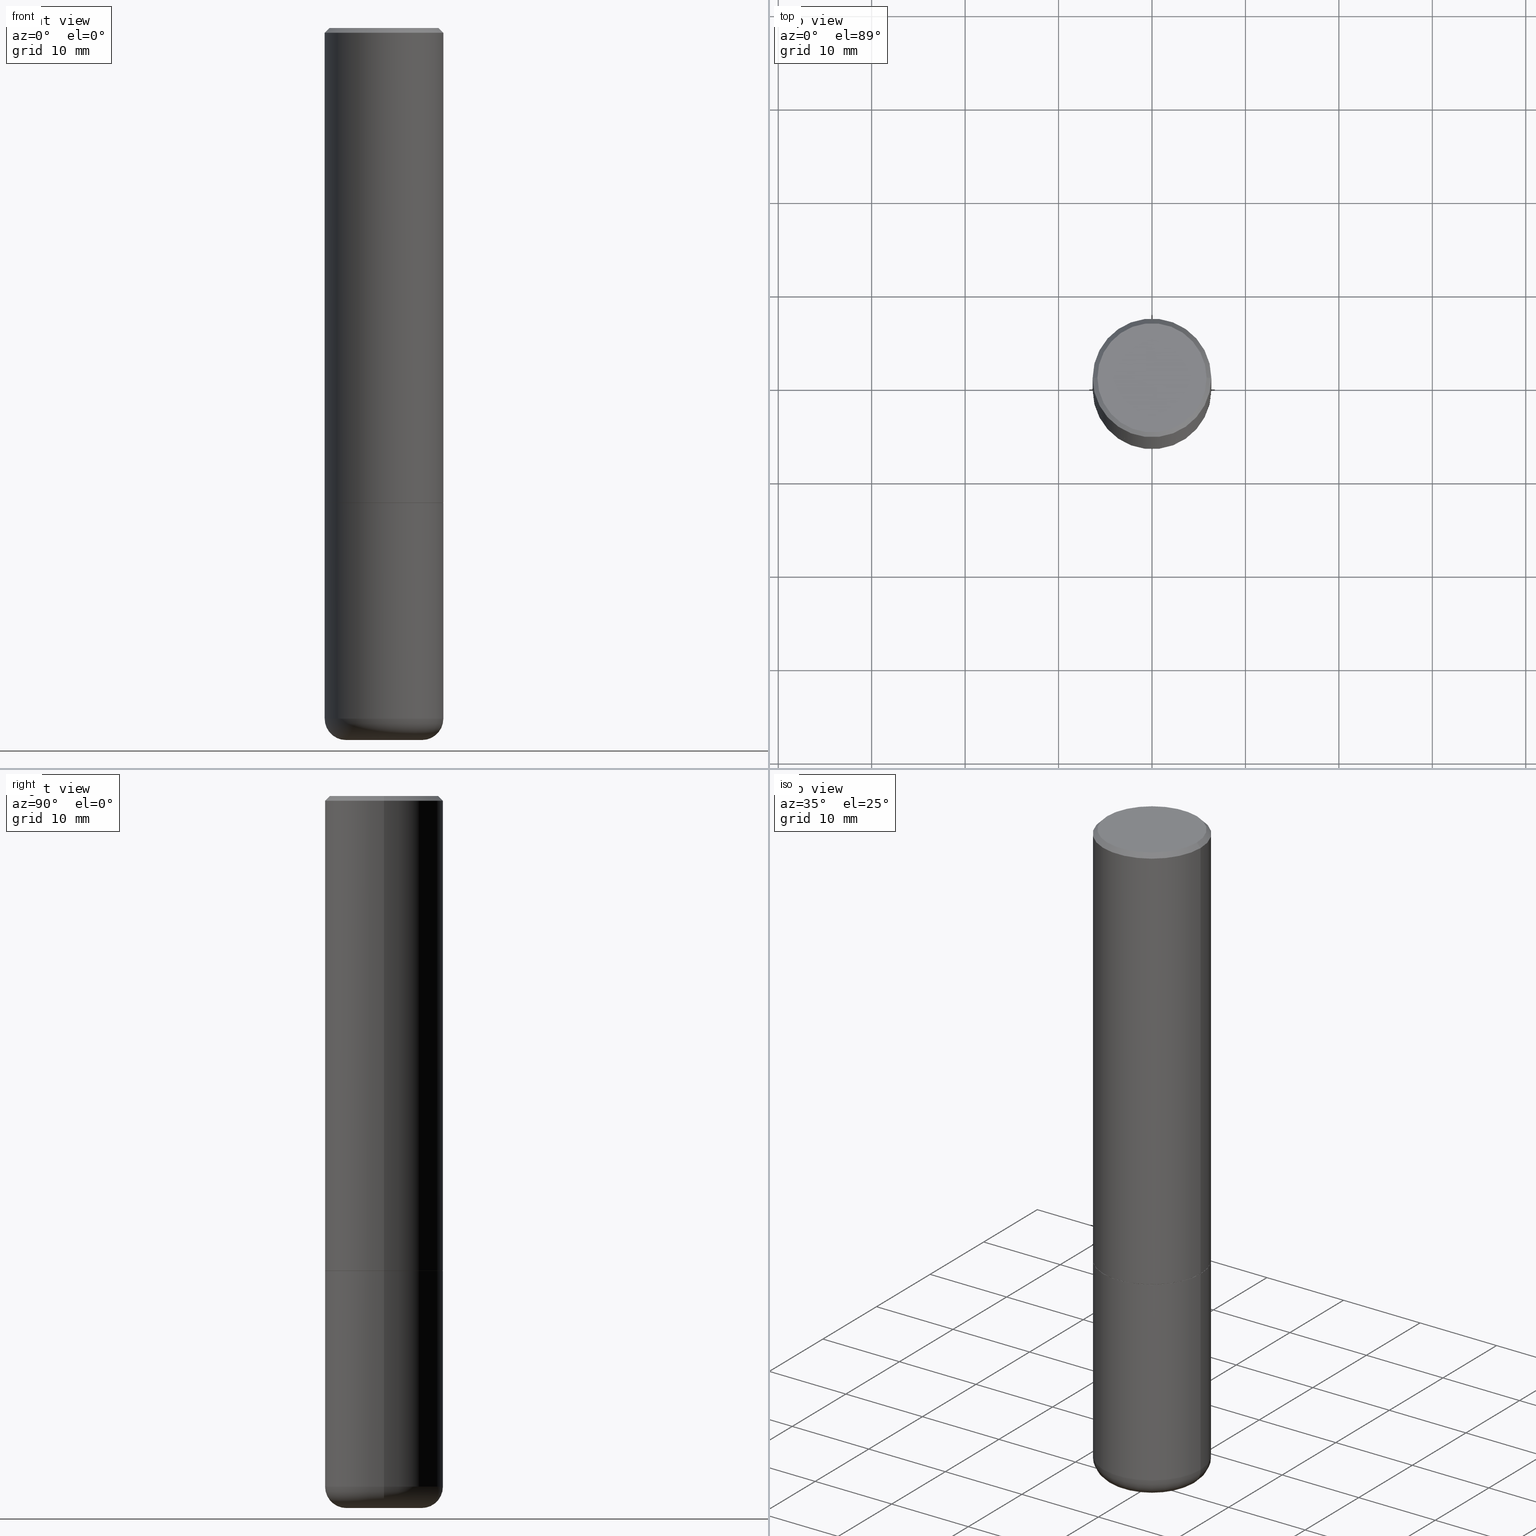
[diagram: canonical four-view strip — front | top / right | iso, engineering-drawing reading convention]
A machine part, canonical four-view strip (front | top / right | iso — engineering-drawing reading convention). The complete STEP part file that produces these views, byte-faithful:
ISO-10303-21;
HEADER;
FILE_DESCRIPTION (( 'STEP AP203' ),
    '1' );
FILE_NAME ('37046.STEP',
    '2024-03-01T19:10:47',
    ( '' ),
    ( '' ),
    'SwSTEP 2.0',
    'SolidWorks 2023',
    '' );
FILE_SCHEMA (( 'CONFIG_CONTROL_DESIGN' ));
ENDSEC;

DATA;
#1 = EDGE_LOOP ( 'NONE', ( #291, #216, #240, #373 ) ) ;
#2 = AXIS2_PLACEMENT_3D ( 'NONE', #98, #135, #361 ) ;
#3 = LOCAL_TIME ( 14, 10, 47.00000000000000000, #92 ) ;
#4 = LINE ( 'NONE', #130, #126 ) ;
#5 = CARTESIAN_POINT ( 'NONE',  ( -0.1600000000000000033, -8.860714747973291991E-15, -2.999999999999999556 ) ) ;
#6 = CARTESIAN_POINT ( 'NONE',  ( 4.890937612370287172E-31, -6.982962677686310098E-17, -0.02000000000000005593 ) ) ;
#7 = CIRCLE ( 'NONE', #65, 0.2299999999999998712 ) ;
#8 = CARTESIAN_POINT ( 'NONE',  ( 4.890937612370287172E-31, -6.982962677686310098E-17, -0.02000000000000005593 ) ) ;
#9 = DIRECTION ( 'NONE',  ( -2.445468806185136597E-29, 3.491481338843145583E-15, 1.000000000000000000 ) ) ;
#10 = ADVANCED_FACE ( 'NONE', ( #289 ), #30, .T. ) ;
#11 = DIRECTION ( 'NONE',  ( 1.000000000000000000, -6.982962677686266711E-15, 0.000000000000000000 ) ) ;
#12 = CIRCLE ( 'NONE', #294, 0.08999999999999964972 ) ;
#13 = DIRECTION ( 'NONE',  ( 0.7071067811865466846, -7.319954787623252890E-15, -0.7071067811865483499 ) ) ;
#14 = CARTESIAN_POINT ( 'NONE',  ( 4.890937612370273754E-29, -6.982962677686291954E-15, -2.000000000000000444 ) ) ;
#15 = ORIENTED_EDGE ( 'NONE', *, *, #101, .F. ) ;
#16 = FACE_OUTER_BOUND ( 'NONE', #283, .T. ) ;
#17 = LINE ( 'NONE', #370, #140 ) ;
#18 = DIRECTION ( 'NONE',  ( -2.445468806185136597E-29, 3.491481338843145583E-15, 1.000000000000000000 ) ) ;
#19 = PRODUCT_DEFINITION ( 'UNKNOWN', '', #227, #57 ) ;
#20 = DATE_TIME_ROLE ( 'creation_date' ) ;
#21 = FACE_OUTER_BOUND ( 'NONE', #315, .T. ) ;
#22 = CLOSED_SHELL ( 'NONE', ( #187, #241, #237, #10, #33, #207, #340, #40 ) ) ;
#23 = ORIENTED_EDGE ( 'NONE', *, *, #371, .F. ) ;
#24 = AXIS2_PLACEMENT_3D ( 'NONE', #78, #278, #272 ) ;
#25 = EDGE_CURVE ( 'NONE', #83, #344, #54, .T. ) ;
#26 = DIRECTION ( 'NONE',  ( 2.445468806185136597E-29, -3.491481338843145583E-15, -1.000000000000000000 ) ) ;
#27 = ORIENTED_EDGE ( 'NONE', *, *, #409, .F. ) ;
#28 = APPLICATION_CONTEXT ( 'configuration controlled 3d designs of mechanical parts and assemblies' ) ;
#29 = DIRECTION ( 'NONE',  ( 1.000000000000000000, -6.982962677686267499E-15, 4.876176775795936353E-29 ) ) ;
#30 = CONICAL_SURFACE ( 'NONE', #246, 0.2500000000000000000, 0.7853981633974471688 ) ;
#31 = APPROVAL_DATE_TIME ( #88, #323 ) ;
#32 = CARTESIAN_POINT ( 'NONE',  ( -0.2500000000000000000, 1.675911042644703577E-15, -0.02000000000000005593 ) ) ;
#33 = ADVANCED_FACE ( 'NONE', ( #124 ), #230, .T. ) ;
#34 = FACE_OUTER_BOUND ( 'NONE', #184, .T. ) ;
#35 = CARTESIAN_POINT ( 'NONE',  ( -0.2500000000000001110, 1.776356839400251254E-15, -1.229733772563727146E-29 ) ) ;
#36 = ADVANCED_FACE ( 'NONE', ( #376 ), #111, .T. ) ;
#37 = CYLINDRICAL_SURFACE ( 'NONE', #119, 0.2500000000000001110 ) ;
#38 = PLANE ( 'NONE',  #377 ) ;
#39 = LINE ( 'NONE', #41, #412 ) ;
#40 = ADVANCED_FACE ( 'NONE', ( #408 ), #189, .F. ) ;
#41 = CARTESIAN_POINT ( 'NONE',  ( 0.2489999999999999991, -8.721720384430172617E-15, -2.000000000000000444 ) ) ;
#42 = ORIENTED_EDGE ( 'NONE', *, *, #358, .F. ) ;
#43 = DIRECTION ( 'NONE',  ( -2.445468806185136597E-29, 3.491481338843145583E-15, 1.000000000000000000 ) ) ;
#44 = VERTEX_POINT ( 'NONE', #51 ) ;
#45 =( LENGTH_UNIT ( ) NAMED_UNIT ( * ) SI_UNIT ( $, .METRE. ) );
#46 = VERTEX_POINT ( 'NONE', #186 ) ;
#47 = ADVANCED_FACE ( 'NONE', ( #21 ), #153, .T. ) ;
#48 = PERSON_AND_ORGANIZATION ( #338, #148 ) ;
#49 = ORIENTED_EDGE ( 'NONE', *, *, #385, .T. ) ;
#50 = CALENDAR_DATE ( 2024, 1, 3 ) ;
#51 = CARTESIAN_POINT ( 'NONE',  ( 0.2500000000000000000, -1.784954126219746189E-15, -0.02000000000000005593 ) ) ;
#52 = PERSON_AND_ORGANIZATION ( #338, #148 ) ;
#53 = DIRECTION ( 'NONE',  ( 1.000000000000000000, -6.982962677686267499E-15, 4.876176775795936353E-29 ) ) ;
#54 = CIRCLE ( 'NONE', #355, 0.1600000000000000033 ) ;
#55 = APPLICATION_PROTOCOL_DEFINITION ( 'international standard', 'config_control_design', 1994, #341 ) ;
#56 = VECTOR ( 'NONE', #13, 39.37007874015748143 ) ;
#57 = DESIGN_CONTEXT ( 'detailed design', #341, 'design' ) ;
#58 = ORIENTED_EDGE ( 'NONE', *, *, #297, .F. ) ;
#59 = LOCAL_TIME ( 14, 10, 47.00000000000000000, #418 ) ;
#60 = CARTESIAN_POINT ( 'NONE',  ( 0.000000000000000000, 0.000000000000000000, 0.000000000000000000 ) ) ;
#61 = ORIENTED_EDGE ( 'NONE', *, *, #284, .F. ) ;
#62 = ORIENTED_EDGE ( 'NONE', *, *, #63, .T. ) ;
#63 = EDGE_CURVE ( 'NONE', #253, #46, #322, .T. ) ;
#64 = CARTESIAN_POINT ( 'NONE',  ( 7.116314225998749245E-29, -1.016021069603355467E-14, -2.910000000000000586 ) ) ;
#65 = AXIS2_PLACEMENT_3D ( 'NONE', #276, #282, #305 ) ;
#66 = DIRECTION ( 'NONE',  ( -2.445468806185136597E-29, 3.491481338843145583E-15, 1.000000000000000000 ) ) ;
#67 = DIRECTION ( 'NONE',  ( 1.000000000000000000, -6.982962677686270655E-15, 0.000000000000000000 ) ) ;
#68 = EDGE_CURVE ( 'NONE', #277, #397, #71, .T. ) ;
#69 = DIRECTION ( 'NONE',  ( 1.000000000000000000, -6.982962677686271444E-15, 0.000000000000000000 ) ) ;
#70 = LOCAL_TIME ( 14, 10, 47.00000000000000000, #255 ) ;
#71 = CIRCLE ( 'NONE', #266, 0.2500000000000000000 ) ;
#72 = CARTESIAN_POINT ( 'NONE',  ( 0.000000000000000000, 0.000000000000000000, 0.000000000000000000 ) ) ;
#73 = DIRECTION ( 'NONE',  ( -2.445468806185136597E-29, 3.491481338843145583E-15, 1.000000000000000000 ) ) ;
#74 = EDGE_LOOP ( 'NONE', ( #346, #23, #348, #138 ) ) ;
#75 = CARTESIAN_POINT ( 'NONE',  ( 4.890937612370273754E-29, -6.982962677686291954E-15, -2.000000000000000444 ) ) ;
#76 = ORIENTED_EDGE ( 'NONE', *, *, #269, .F. ) ;
#77 = CONICAL_SURFACE ( 'NONE', #147, 0.2489999999999999991, 0.7853981633975336552 ) ;
#78 = CARTESIAN_POINT ( 'NONE',  ( 4.888492143564088712E-29, -6.979471196347448158E-15, -1.999000000000000110 ) ) ;
#79 = ORIENTED_EDGE ( 'NONE', *, *, #139, .F. ) ;
#80 = DIRECTION ( 'NONE',  ( 1.000000000000000000, -6.982962677686266711E-15, 0.000000000000000000 ) ) ;
#81 = VERTEX_POINT ( 'NONE', #302 ) ;
#82 = PERSON_AND_ORGANIZATION_ROLE ( 'creator' ) ;
#83 = VERTEX_POINT ( 'NONE', #5 ) ;
#84 = AXIS2_PLACEMENT_3D ( 'NONE', #60, #352, #185 ) ;
#85 = AXIS2_PLACEMENT_3D ( 'NONE', #14, #73, #367 ) ;
#86 = APPROVAL_ROLE ( '' ) ;
#87 = CARTESIAN_POINT ( 'NONE',  ( 1.606081415867840278E-15, 0.2299999999999998712, -7.411472768274671077E-16 ) ) ;
#88 = DATE_AND_TIME ( #379, #70 ) ;
#89 = ORIENTED_EDGE ( 'NONE', *, *, #178, .T. ) ;
#90 = DIRECTION ( 'NONE',  ( -1.000000000000000000, 6.982962677686266711E-15, 0.000000000000000000 ) ) ;
#91 = CLOSED_SHELL ( 'NONE', ( #47, #36, #107, #400, #164, #334 ) ) ;
#92 = COORDINATED_UNIVERSAL_TIME_OFFSET ( 5, 0, .BEHIND. ) ;
#93 = AXIS2_PLACEMENT_3D ( 'NONE', #87, #222, #350 ) ;
#94 = ORIENTED_EDGE ( 'NONE', *, *, #416, .T. ) ;
#95 = AXIS2_PLACEMENT_3D ( 'NONE', #404, #251, #113 ) ;
#96 = ORIENTED_EDGE ( 'NONE', *, *, #193, .F. ) ;
#97 = EDGE_CURVE ( 'NONE', #159, #44, #364, .T. ) ;
#98 = CARTESIAN_POINT ( 'NONE',  ( 4.890937612370273754E-29, -6.982962677686291954E-15, -2.000000000000000444 ) ) ;
#99 = LINE ( 'NONE', #303, #100 ) ;
#100 = VECTOR ( 'NONE', #389, 39.37007874015748143 ) ;
#101 = EDGE_CURVE ( 'NONE', #46, #159, #359, .T. ) ;
#102 = DIRECTION ( 'NONE',  ( 1.000000000000000000, -6.982962677686265133E-15, 4.883557194083112340E-29 ) ) ;
#103 = DIRECTION ( 'NONE',  ( -2.445468806185136597E-29, 3.491481338843145583E-15, 1.000000000000000000 ) ) ;
#104 = APPROVAL_PERSON_ORGANIZATION ( #52, #300, #314 ) ;
#105 = CIRCLE ( 'NONE', #219, 0.2500000000000000000 ) ;
#106 = CARTESIAN_POINT ( 'NONE',  ( 4.890937612370273754E-29, -6.982962677686291954E-15, -2.000000000000000444 ) ) ;
#107 = ADVANCED_FACE ( 'NONE', ( #163 ), #134, .F. ) ;
#108 = LINE ( 'NONE', #181, #56 ) ;
#109 = CARTESIAN_POINT ( 'NONE',  ( 0.1600000000000000033, -1.159171804495923808E-14, -2.999999999999999556 ) ) ;
#110 = CC_DESIGN_APPROVAL ( #300, ( #19 ) ) ;
#111 = TOROIDAL_SURFACE ( 'NONE', #360, 0.1600000000000000033, 0.08999999999999964972 ) ;
#112 = AXIS2_PLACEMENT_3D ( 'NONE', #405, #372, #80 ) ;
#113 = DIRECTION ( 'NONE',  ( 1.000000000000000000, -6.982962677686266711E-15, 4.876176775795935793E-29 ) ) ;
#114 = EDGE_CURVE ( 'NONE', #354, #313, #228, .T. ) ;
#115 = DIRECTION ( 'NONE',  ( -2.445468806185136597E-29, 3.491481338843145583E-15, 1.000000000000000000 ) ) ;
#116 = ORIENTED_EDGE ( 'NONE', *, *, #409, .T. ) ;
#117 = PERSON_AND_ORGANIZATION ( #338, #148 ) ;
#118 = DIRECTION ( 'NONE',  ( -2.445468806185136597E-29, 3.491481338843145583E-15, 1.000000000000000000 ) ) ;
#119 = AXIS2_PLACEMENT_3D ( 'NONE', #72, #199, #29 ) ;
#120 = PERSON_AND_ORGANIZATION_ROLE ( 'design_owner' ) ;
#121 = EDGE_LOOP ( 'NONE', ( #116, #122, #42, #61 ) ) ;
#122 = ORIENTED_EDGE ( 'NONE', *, *, #128, .T. ) ;
#123 = PERSON_AND_ORGANIZATION_ROLE ( 'classification_officer' ) ;
#124 = FACE_OUTER_BOUND ( 'NONE', #127, .T. ) ;
#125 = DATE_AND_TIME ( #221, #59 ) ;
#126 = VECTOR ( 'NONE', #232, 39.37007874015748143 ) ;
#127 = EDGE_LOOP ( 'NONE', ( #79, #309, #321, #261 ) ) ;
#128 = EDGE_CURVE ( 'NONE', #259, #354, #99, .T. ) ;
#129 = DIMENSIONAL_EXPONENTS ( 1.000000000000000000, 0.000000000000000000, 0.000000000000000000, 0.000000000000000000, 0.000000000000000000, 0.000000000000000000, 0.000000000000000000 ) ;
#130 = CARTESIAN_POINT ( 'NONE',  ( -0.2500000000000000000, 1.776356839400250465E-15, -1.229733772563726445E-29 ) ) ;
#131 = DIRECTION ( 'NONE',  ( -0.7071067811865466846, 2.468850131082247989E-15, -0.7071067811865483499 ) ) ;
#132 = DIRECTION ( 'NONE',  ( 2.445468806185136597E-29, -3.491481338843145583E-15, -1.000000000000000000 ) ) ;
#133 = AXIS2_PLACEMENT_3D ( 'NONE', #351, #231, #53 ) ;
#134 = PLANE ( 'NONE',  #168 ) ;
#135 = DIRECTION ( 'NONE',  ( -2.445468806185136597E-29, 3.491481338843145583E-15, 1.000000000000000000 ) ) ;
#136 = LINE ( 'NONE', #374, #336 ) ;
#137 = AXIS2_PLACEMENT_3D ( 'NONE', #75, #396, #210 ) ;
#138 = ORIENTED_EDGE ( 'NONE', *, *, #97, .T. ) ;
#139 = EDGE_CURVE ( 'NONE', #354, #159, #329, .T. ) ;
#140 = VECTOR ( 'NONE', #368, 39.37007874015748143 ) ;
#141 = DIRECTION ( 'NONE',  ( -2.445468806185136877E-29, 3.491481338843145188E-15, 1.000000000000000000 ) ) ;
#142 = ORIENTED_EDGE ( 'NONE', *, *, #68, .F. ) ;
#143 = CARTESIAN_POINT ( 'NONE',  ( -0.2500000000000002220, -1.748293572161901516E-15, -1.999000000000000110 ) ) ;
#144 = ORIENTED_EDGE ( 'NONE', *, *, #63, .F. ) ;
#145 = CC_DESIGN_PERSON_AND_ORGANIZATION_ASSIGNMENT ( #415, #123, ( #169 ) ) ;
#146 = DIRECTION ( 'NONE',  ( 2.438088387897960049E-29, -3.491481338843145188E-15, -1.000000000000000000 ) ) ;
#147 = AXIS2_PLACEMENT_3D ( 'NONE', #270, #66, #363 ) ;
#148 = ORGANIZATION ( 'UNSPECIFIED', 'UNSPECIFIED', '' ) ;
#149 = PLANE ( 'NONE',  #212 ) ;
#150 = PERSON_AND_ORGANIZATION ( #338, #148 ) ;
#151 = ORIENTED_EDGE ( 'NONE', *, *, #128, .F. ) ;
#152 = DATE_TIME_ROLE ( 'classification_date' ) ;
#153 = CYLINDRICAL_SURFACE ( 'NONE', #356, 0.2500000000000000000 ) ;
#154 = CIRCLE ( 'NONE', #265, 0.2500000000000000000 ) ;
#155 = DIRECTION ( 'NONE',  ( 1.000000000000000000, -6.982962677686265133E-15, 4.883557194083112340E-29 ) ) ;
#156 = APPROVAL_DATE_TIME ( #125, #220 ) ;
#157 = DIRECTION ( 'NONE',  ( 1.000000000000000000, -6.982962677686271444E-15, 0.000000000000000000 ) ) ;
#158 = PERSON_AND_ORGANIZATION ( #338, #148 ) ;
#159 = VERTEX_POINT ( 'NONE', #234 ) ;
#160 = ADVANCED_BREP_SHAPE_REPRESENTATION ( '37046', ( #174, #319, #84 ), #166 ) ;
#161 = CC_DESIGN_APPROVAL ( #323, ( #169 ) ) ;
#162 = CARTESIAN_POINT ( 'NONE',  ( 0.2299999999999998712, -1.681434332853598419E-15, 1.237868622129234180E-16 ) ) ;
#163 = FACE_OUTER_BOUND ( 'NONE', #196, .T. ) ;
#164 = ADVANCED_FACE ( 'NONE', ( #34 ), #369, .T. ) ;
#165 = DIRECTION ( 'NONE',  ( 1.000000000000000000, -6.982962677686266711E-15, 4.879110437680778240E-29 ) ) ;
#166 =( GEOMETRIC_REPRESENTATION_CONTEXT ( 3 ) GLOBAL_UNCERTAINTY_ASSIGNED_CONTEXT ( ( #203 ) ) GLOBAL_UNIT_ASSIGNED_CONTEXT ( ( #292, #285, #262 ) ) REPRESENTATION_CONTEXT ( 'NONE', 'WORKASPACE' ) );
#167 = CARTESIAN_POINT ( 'NONE',  ( 7.116314225998749245E-29, -1.016021069603355467E-14, -2.910000000000000586 ) ) ;
#168 = AXIS2_PLACEMENT_3D ( 'NONE', #264, #298, #202 ) ;
#169 = SECURITY_CLASSIFICATION ( '', '', #290 ) ;
#170 = DIRECTION ( 'NONE',  ( -2.445468806185136597E-29, 3.491481338843145583E-15, 1.000000000000000000 ) ) ;
#171 = CARTESIAN_POINT ( 'NONE',  ( -0.1600000000000000033, -9.023342318817394938E-15, -2.910000000000000586 ) ) ;
#172 = CC_DESIGN_PERSON_AND_ORGANIZATION_ASSIGNMENT ( #150, #120, ( #243 ) ) ;
#173 = CARTESIAN_POINT ( 'NONE',  ( 0.2500000000000002220, -8.725211865769017202E-15, -1.999000000000000110 ) ) ;
#174 = MANIFOLD_SOLID_BREP ( 'Body-Move/Copy2[1]', #91 ) ;
#175 = AXIS2_PLACEMENT_3D ( 'NONE', #333, #170, #238 ) ;
#176 = CARTESIAN_POINT ( 'NONE',  ( 0.2499999999999998335, -1.190595136545512292E-14, -2.910000000000000586 ) ) ;
#177 = ORIENTED_EDGE ( 'NONE', *, *, #297, .T. ) ;
#178 = EDGE_CURVE ( 'NONE', #417, #380, #343, .T. ) ;
#179 = FACE_OUTER_BOUND ( 'NONE', #250, .T. ) ;
#180 = ORIENTED_EDGE ( 'NONE', *, *, #307, .F. ) ;
#181 = CARTESIAN_POINT ( 'NONE',  ( 0.2500000000000000000, -1.784954126219746189E-15, -0.02000000000000005593 ) ) ;
#182 = ORIENTED_EDGE ( 'NONE', *, *, #371, .T. ) ;
#183 = VECTOR ( 'NONE', #268, 39.37007874015748143 ) ;
#184 = EDGE_LOOP ( 'NONE', ( #76, #256, #49, #142 ) ) ;
#185 = DIRECTION ( 'NONE',  ( 1.000000000000000000, 0.000000000000000000, 0.000000000000000000 ) ) ;
#186 = CARTESIAN_POINT ( 'NONE',  ( -0.2299999999999998712, 1.640996229256272125E-15, 1.237868622129005656E-16 ) ) ;
#187 = ADVANCED_FACE ( 'NONE', ( #236 ), #77, .T. ) ;
#188 = APPROVAL_STATUS ( 'not_yet_approved' ) ;
#189 = PLANE ( 'NONE',  #93 ) ;
#190 = AXIS2_PLACEMENT_3D ( 'NONE', #64, #392, #102 ) ;
#191 = CALENDAR_DATE ( 2024, 1, 3 ) ;
#192 = EDGE_LOOP ( 'NONE', ( #144, #194, #252, #15 ) ) ;
#193 = EDGE_CURVE ( 'NONE', #344, #83, #386, .T. ) ;
#194 = ORIENTED_EDGE ( 'NONE', *, *, #394, .T. ) ;
#195 = CC_DESIGN_DATE_AND_TIME_ASSIGNMENT ( #229, #152, ( #169 ) ) ;
#196 = EDGE_LOOP ( 'NONE', ( #89, #177 ) ) ;
#197 = PRODUCT_DEFINITION_SHAPE ( 'NONE', 'NONE',  #19 ) ;
#198 = AXIS2_PLACEMENT_3D ( 'NONE', #201, #9, #165 ) ;
#199 = DIRECTION ( 'NONE',  ( -2.445468806185136597E-29, 3.491481338843145583E-15, 1.000000000000000000 ) ) ;
#200 = CC_DESIGN_PERSON_AND_ORGANIZATION_ASSIGNMENT ( #117, #82, ( #19 ) ) ;
#201 = CARTESIAN_POINT ( 'NONE',  ( -3.027169101572137302E-45, 4.321995194103296744E-31, 1.237868622129119302E-16 ) ) ;
#202 = DIRECTION ( 'NONE',  ( -1.000000000000000000, 6.982962677686265922E-15, -4.876176775795935793E-29 ) ) ;
#203 = UNCERTAINTY_MEASURE_WITH_UNIT (LENGTH_MEASURE( 1.000000000000000082E-05 ), #292, 'distance_accuracy_value', 'NONE');
#204 = CC_DESIGN_SECURITY_CLASSIFICATION ( #169, ( #227 ) ) ;
#205 = DIRECTION ( 'NONE',  ( -1.000000000000000000, 6.982962677686266711E-15, 0.000000000000000000 ) ) ;
#206 = AXIS2_PLACEMENT_3D ( 'NONE', #393, #103, #69 ) ;
#207 = ADVANCED_FACE ( 'NONE', ( #299 ), #390, .T. ) ;
#208 = DIRECTION ( 'NONE',  ( -1.000000000000000000, 6.982962677686265922E-15, -4.876176775795935793E-29 ) ) ;
#209 = CARTESIAN_POINT ( 'NONE',  ( 0.1600000000000000033, -1.127748472446335797E-14, -2.910000000000000586 ) ) ;
#210 = DIRECTION ( 'NONE',  ( 1.000000000000000000, -6.982962677686266711E-15, 0.000000000000000000 ) ) ;
#211 = EDGE_LOOP ( 'NONE', ( #27, #279 ) ) ;
#212 = AXIS2_PLACEMENT_3D ( 'NONE', #401, #146, #208 ) ;
#213 = CARTESIAN_POINT ( 'NONE',  ( -0.2500000000000000000, -6.795229847459672846E-15, -2.000000000000000444 ) ) ;
#214 = ORIENTED_EDGE ( 'NONE', *, *, #318, .F. ) ;
#215 = CARTESIAN_POINT ( 'NONE',  ( 0.2500000000000000000, -8.728703347107858632E-15, -2.000000000000000444 ) ) ;
#216 = ORIENTED_EDGE ( 'NONE', *, *, #269, .T. ) ;
#217 = LENGTH_MEASURE_WITH_UNIT ( LENGTH_MEASURE( 0.02539999999999999897 ), #45 );
#218 = ORIENTED_EDGE ( 'NONE', *, *, #318, .T. ) ;
#219 = AXIS2_PLACEMENT_3D ( 'NONE', #242, #115, #11 ) ;
#220 = APPROVAL ( #324, 'UNSPECIFIED' ) ;
#221 = CALENDAR_DATE ( 2024, 1, 3 ) ;
#222 = DIRECTION ( 'NONE',  ( 2.438088387897960049E-29, -3.491481338843145188E-15, -1.000000000000000000 ) ) ;
#223 = CARTESIAN_POINT ( 'NONE',  ( 7.336406418555408669E-29, -1.047444401652943478E-14, -2.999999999999999556 ) ) ;
#224 = COORDINATED_UNIVERSAL_TIME_OFFSET ( 5, 0, .BEHIND. ) ;
#225 = ORIENTED_EDGE ( 'NONE', *, *, #178, .F. ) ;
#226 = CC_DESIGN_PERSON_AND_ORGANIZATION_ASSIGNMENT ( #347, #382, ( #227 ) ) ;
#227 = PRODUCT_DEFINITION_FORMATION_WITH_SPECIFIED_SOURCE ( 'ANY', '', #243, .NOT_KNOWN. ) ;
#228 = CIRCLE ( 'NONE', #395, 0.2500000000000002220 ) ;
#229 = DATE_AND_TIME ( #50, #3 ) ;
#230 = CYLINDRICAL_SURFACE ( 'NONE', #133, 0.2500000000000001110 ) ;
#231 = DIRECTION ( 'NONE',  ( -2.445468806185136597E-29, 3.491481338843145583E-15, 1.000000000000000000 ) ) ;
#232 = DIRECTION ( 'NONE',  ( -2.445468806185136877E-29, 3.491481338843145188E-15, 1.000000000000000000 ) ) ;
#233 = AXIS2_PLACEMENT_3D ( 'NONE', #209, #244, #280 ) ;
#234 = CARTESIAN_POINT ( 'NONE',  ( -0.2500000000000000000, 1.675911042644703577E-15, -0.02000000000000005593 ) ) ;
#235 = DIRECTION ( 'NONE',  ( -2.445468806185136597E-29, 3.491481338843145583E-15, 1.000000000000000000 ) ) ;
#236 = FACE_OUTER_BOUND ( 'NONE', #121, .T. ) ;
#237 = ADVANCED_FACE ( 'NONE', ( #267 ), #331, .T. ) ;
#238 = DIRECTION ( 'NONE',  ( 1.000000000000000000, -6.982962677686266711E-15, 0.000000000000000000 ) ) ;
#239 = DIRECTION ( 'NONE',  ( 1.000000000000000000, -6.982962677686265922E-15, 4.876176775795935793E-29 ) ) ;
#240 = ORIENTED_EDGE ( 'NONE', *, *, #311, .F. ) ;
#241 = ADVANCED_FACE ( 'NONE', ( #337 ), #37, .T. ) ;
#242 = CARTESIAN_POINT ( 'NONE',  ( 4.890937612370287172E-31, -6.982962677686310098E-17, -0.02000000000000005593 ) ) ;
#243 = PRODUCT ( '37046', '37046', '', ( #320 ) ) ;
#244 = DIRECTION ( 'NONE',  ( -6.982962677686266711E-15, -1.000000000000000000, 3.491481338843145583E-15 ) ) ;
#245 = PRODUCT_RELATED_PRODUCT_CATEGORY ( 'detail', '', ( #243 ) ) ;
#246 = AXIS2_PLACEMENT_3D ( 'NONE', #414, #26, #90 ) ;
#247 = ORIENTED_EDGE ( 'NONE', *, *, #258, .F. ) ;
#248 = VECTOR ( 'NONE', #131, 39.37007874015748143 ) ;
#249 = CARTESIAN_POINT ( 'NONE',  ( -0.2499999999999998335, -8.383853856633305780E-15, -2.910000000000000586 ) ) ;
#250 = EDGE_LOOP ( 'NONE', ( #247, #325, #218, #58 ) ) ;
#251 = DIRECTION ( 'NONE',  ( -2.445468806185136597E-29, 3.491481338843145583E-15, 1.000000000000000000 ) ) ;
#252 = ORIENTED_EDGE ( 'NONE', *, *, #275, .T. ) ;
#253 = VERTEX_POINT ( 'NONE', #162 ) ;
#254 = CIRCLE ( 'NONE', #24, 0.2500000000000002220 ) ;
#255 = COORDINATED_UNIVERSAL_TIME_OFFSET ( 5, 0, .BEHIND. ) ;
#256 = ORIENTED_EDGE ( 'NONE', *, *, #25, .T. ) ;
#257 = DATE_AND_TIME ( #326, #353 ) ;
#258 = EDGE_CURVE ( 'NONE', #277, #380, #4, .T. ) ;
#259 = VERTEX_POINT ( 'NONE', #332 ) ;
#260 = PERSON_AND_ORGANIZATION_ROLE ( 'design_supplier' ) ;
#261 = ORIENTED_EDGE ( 'NONE', *, *, #97, .F. ) ;
#262 =( NAMED_UNIT ( * ) SI_UNIT ( $, .STERADIAN. ) SOLID_ANGLE_UNIT ( ) );
#263 = DIRECTION ( 'NONE',  ( 1.000000000000000000, -6.982962677686266711E-15, 4.876176775795935793E-29 ) ) ;
#264 = CARTESIAN_POINT ( 'NONE',  ( 4.890937612370273754E-29, -6.982962677686291954E-15, -2.000000000000000444 ) ) ;
#265 = AXIS2_PLACEMENT_3D ( 'NONE', #398, #43, #342 ) ;
#266 = AXIS2_PLACEMENT_3D ( 'NONE', #167, #235, #67 ) ;
#267 = FACE_OUTER_BOUND ( 'NONE', #192, .T. ) ;
#268 = DIRECTION ( 'NONE',  ( -2.445468806185136877E-29, 3.491481338843145188E-15, 1.000000000000000000 ) ) ;
#269 = EDGE_CURVE ( 'NONE', #83, #277, #12, .T. ) ;
#270 = CARTESIAN_POINT ( 'NONE',  ( 4.890937612370273754E-29, -6.982962677686291954E-15, -2.000000000000000444 ) ) ;
#271 = CIRCLE ( 'NONE', #137, 0.2489999999999999991 ) ;
#272 = DIRECTION ( 'NONE',  ( 1.000000000000000000, -6.982962677686268288E-15, 0.000000000000000000 ) ) ;
#273 = CIRCLE ( 'NONE', #85, 0.2500000000000000000 ) ;
#274 = EDGE_LOOP ( 'NONE', ( #182, #62 ) ) ;
#275 = EDGE_CURVE ( 'NONE', #44, #159, #105, .T. ) ;
#276 = CARTESIAN_POINT ( 'NONE',  ( -3.027169101572137302E-45, 4.321995194103296744E-31, 1.237868622129119302E-16 ) ) ;
#277 = VERTEX_POINT ( 'NONE', #249 ) ;
#278 = DIRECTION ( 'NONE',  ( -2.445468806185136597E-29, 3.491481338843145583E-15, 1.000000000000000000 ) ) ;
#279 = ORIENTED_EDGE ( 'NONE', *, *, #416, .F. ) ;
#280 = DIRECTION ( 'NONE',  ( 1.000000000000000000, -6.982962677686273810E-15, 0.000000000000000000 ) ) ;
#281 = AXIS2_PLACEMENT_3D ( 'NONE', #6, #132, #205 ) ;
#282 = DIRECTION ( 'NONE',  ( -2.445468806185136597E-29, 3.491481338843145583E-15, 1.000000000000000000 ) ) ;
#283 = EDGE_LOOP ( 'NONE', ( #96, #411 ) ) ;
#284 = EDGE_CURVE ( 'NONE', #81, #313, #39, .T. ) ;
#285 =( NAMED_UNIT ( * ) PLANE_ANGLE_UNIT ( ) SI_UNIT ( $, .RADIAN. ) );
#286 = ORIENTED_EDGE ( 'NONE', *, *, #275, .F. ) ;
#287 = APPROVAL_STATUS ( 'not_yet_approved' ) ;
#288 = CARTESIAN_POINT ( 'NONE',  ( 0.000000000000000000, 0.000000000000000000, 0.000000000000000000 ) ) ;
#289 = FACE_OUTER_BOUND ( 'NONE', #74, .T. ) ;
#290 = SECURITY_CLASSIFICATION_LEVEL ( 'unclassified' ) ;
#291 = ORIENTED_EDGE ( 'NONE', *, *, #193, .T. ) ;
#292 =( CONVERSION_BASED_UNIT ( 'INCH', #217 ) LENGTH_UNIT ( ) NAMED_UNIT ( #129 ) );
#293 = ORIENTED_EDGE ( 'NONE', *, *, #311, .T. ) ;
#294 = AXIS2_PLACEMENT_3D ( 'NONE', #171, #345, #304 ) ;
#295 = APPROVAL_PERSON_ORGANIZATION ( #48, #323, #410 ) ;
#296 = DIRECTION ( 'NONE',  ( -2.445468806185136597E-29, 3.491481338843145583E-15, 1.000000000000000000 ) ) ;
#297 = EDGE_CURVE ( 'NONE', #380, #417, #273, .T. ) ;
#298 = DIRECTION ( 'NONE',  ( 2.438088387897960049E-29, -3.491481338843145188E-15, -1.000000000000000000 ) ) ;
#299 = FACE_OUTER_BOUND ( 'NONE', #327, .T. ) ;
#300 = APPROVAL ( #188, 'UNSPECIFIED' ) ;
#301 = CIRCLE ( 'NONE', #112, 0.2489999999999999991 ) ;
#302 = CARTESIAN_POINT ( 'NONE',  ( 0.2489999999999999991, -8.721720384430172617E-15, -2.000000000000000444 ) ) ;
#303 = CARTESIAN_POINT ( 'NONE',  ( -0.2489999999999999991, -5.213711265643642498E-15, -2.000000000000000444 ) ) ;
#304 = DIRECTION ( 'NONE',  ( -1.000000000000000000, 7.105427357600996337E-15, 0.000000000000000000 ) ) ;
#305 = DIRECTION ( 'NONE',  ( 1.000000000000000000, -6.982962677686266711E-15, 4.879110437680778240E-29 ) ) ;
#306 = CIRCLE ( 'NONE', #233, 0.08999999999999964972 ) ;
#307 = EDGE_CURVE ( 'NONE', #313, #44, #136, .T. ) ;
#308 = FACE_OUTER_BOUND ( 'NONE', #211, .T. ) ;
#309 = ORIENTED_EDGE ( 'NONE', *, *, #114, .T. ) ;
#310 = CYLINDRICAL_SURFACE ( 'NONE', #95, 0.2500000000000000000 ) ;
#311 = EDGE_CURVE ( 'NONE', #397, #277, #154, .T. ) ;
#312 = DIRECTION ( 'NONE',  ( 0.7071067811866078578, -2.468850131082888544E-15, 0.7071067811864871766 ) ) ;
#313 = VERTEX_POINT ( 'NONE', #173 ) ;
#314 = APPROVAL_ROLE ( '' ) ;
#315 = EDGE_LOOP ( 'NONE', ( #293, #406, #225, #214 ) ) ;
#316 = APPROVAL_DATE_TIME ( #375, #300 ) ;
#317 = ORIENTED_EDGE ( 'NONE', *, *, #139, .T. ) ;
#318 = EDGE_CURVE ( 'NONE', #397, #417, #17, .T. ) ;
#319 = MANIFOLD_SOLID_BREP ( 'Body-Move/Copy2[2]', #22 ) ;
#320 = MECHANICAL_CONTEXT ( 'NONE', #28, 'mechanical' ) ;
#321 = ORIENTED_EDGE ( 'NONE', *, *, #307, .T. ) ;
#322 = CIRCLE ( 'NONE', #198, 0.2299999999999998712 ) ;
#323 = APPROVAL ( #287, 'UNSPECIFIED' ) ;
#324 = APPROVAL_STATUS ( 'not_yet_approved' ) ;
#325 = ORIENTED_EDGE ( 'NONE', *, *, #68, .T. ) ;
#326 = CALENDAR_DATE ( 2024, 1, 3 ) ;
#327 = EDGE_LOOP ( 'NONE', ( #151, #94, #387, #381 ) ) ;
#328 = SHAPE_DEFINITION_REPRESENTATION ( #197, #160 ) ;
#329 = LINE ( 'NONE', #35, #183 ) ;
#330 = LOCAL_TIME ( 14, 10, 47.00000000000000000, #407 ) ;
#331 = CONICAL_SURFACE ( 'NONE', #281, 0.2500000000000000000, 0.7853981633974471688 ) ;
#332 = CARTESIAN_POINT ( 'NONE',  ( -0.2489999999999999991, -5.208412811295419307E-15, -2.000000000000000444 ) ) ;
#333 = CARTESIAN_POINT ( 'NONE',  ( 4.890937612370273754E-29, -6.982962677686291954E-15, -2.000000000000000444 ) ) ;
#334 = ADVANCED_FACE ( 'NONE', ( #16 ), #149, .T. ) ;
#335 = CARTESIAN_POINT ( 'NONE',  ( 4.888492143564088712E-29, -6.979471196347448158E-15, -1.999000000000000110 ) ) ;
#336 = VECTOR ( 'NONE', #141, 39.37007874015748143 ) ;
#337 = FACE_OUTER_BOUND ( 'NONE', #384, .T. ) ;
#338 = PERSON ( 'UNSPECIFIED', 'UNSPECIFIED', 'UNSPECIFIED', ('UNSPECIFIED'), ('UNSPECIFIED'), ('UNSPECIFIED') ) ;
#339 = DIRECTION ( 'NONE',  ( -2.438088387897960049E-29, 3.491481338843145188E-15, 1.000000000000000000 ) ) ;
#340 = ADVANCED_FACE ( 'NONE', ( #308 ), #38, .F. ) ;
#341 = APPLICATION_CONTEXT ( 'configuration controlled 3d designs of mechanical parts and assemblies' ) ;
#342 = DIRECTION ( 'NONE',  ( 1.000000000000000000, -6.982962677686270655E-15, 0.000000000000000000 ) ) ;
#343 = CIRCLE ( 'NONE', #2, 0.2500000000000000000 ) ;
#344 = VERTEX_POINT ( 'NONE', #109 ) ;
#345 = DIRECTION ( 'NONE',  ( 7.105427357601001859E-15, 1.000000000000000000, -3.491481338843145583E-15 ) ) ;
#346 = ORIENTED_EDGE ( 'NONE', *, *, #394, .F. ) ;
#347 = PERSON_AND_ORGANIZATION ( #338, #148 ) ;
#348 = ORIENTED_EDGE ( 'NONE', *, *, #101, .T. ) ;
#349 = PERSON_AND_ORGANIZATION ( #338, #148 ) ;
#350 = DIRECTION ( 'NONE',  ( -1.000000000000000000, 6.982962677686265922E-15, -4.876176775795935793E-29 ) ) ;
#351 = CARTESIAN_POINT ( 'NONE',  ( 0.000000000000000000, 0.000000000000000000, 0.000000000000000000 ) ) ;
#352 = DIRECTION ( 'NONE',  ( 0.000000000000000000, 0.000000000000000000, 1.000000000000000000 ) ) ;
#353 = LOCAL_TIME ( 14, 10, 47.00000000000000000, #224 ) ;
#354 = VERTEX_POINT ( 'NONE', #143 ) ;
#355 = AXIS2_PLACEMENT_3D ( 'NONE', #223, #118, #157 ) ;
#356 = AXIS2_PLACEMENT_3D ( 'NONE', #288, #362, #263 ) ;
#357 = CARTESIAN_POINT ( 'NONE',  ( 7.116314225998749245E-29, -1.016021069603355467E-14, -2.910000000000000586 ) ) ;
#358 = EDGE_CURVE ( 'NONE', #313, #354, #254, .T. ) ;
#359 = LINE ( 'NONE', #32, #248 ) ;
#360 = AXIS2_PLACEMENT_3D ( 'NONE', #357, #18, #155 ) ;
#361 = DIRECTION ( 'NONE',  ( 1.000000000000000000, -6.982962677686266711E-15, 0.000000000000000000 ) ) ;
#362 = DIRECTION ( 'NONE',  ( -2.445468806185136597E-29, 3.491481338843145583E-15, 1.000000000000000000 ) ) ;
#363 = DIRECTION ( 'NONE',  ( 1.000000000000000000, -6.982962677686266711E-15, 0.000000000000000000 ) ) ;
#364 = CIRCLE ( 'NONE', #403, 0.2500000000000000000 ) ;
#365 = DIRECTION ( 'NONE',  ( 1.000000000000000000, -6.982962677686266711E-15, 0.000000000000000000 ) ) ;
#366 = CC_DESIGN_DATE_AND_TIME_ASSIGNMENT ( #257, #20, ( #19 ) ) ;
#367 = DIRECTION ( 'NONE',  ( 1.000000000000000000, -6.982962677686266711E-15, 0.000000000000000000 ) ) ;
#368 = DIRECTION ( 'NONE',  ( -2.445468806185136877E-29, 3.491481338843145188E-15, 1.000000000000000000 ) ) ;
#369 = TOROIDAL_SURFACE ( 'NONE', #190, 0.1600000000000000033, 0.08999999999999964972 ) ;
#370 = CARTESIAN_POINT ( 'NONE',  ( 0.2500000000000000000, -1.745740669421566678E-15, 1.219044193948983948E-29 ) ) ;
#371 = EDGE_CURVE ( 'NONE', #46, #253, #7, .T. ) ;
#372 = DIRECTION ( 'NONE',  ( -2.445468806185136597E-29, 3.491481338843145583E-15, 1.000000000000000000 ) ) ;
#373 = ORIENTED_EDGE ( 'NONE', *, *, #385, .F. ) ;
#374 = CARTESIAN_POINT ( 'NONE',  ( 0.2500000000000001110, -1.745740669421567664E-15, 1.219044193948984649E-29 ) ) ;
#375 = DATE_AND_TIME ( #191, #330 ) ;
#376 = FACE_OUTER_BOUND ( 'NONE', #1, .T. ) ;
#377 = AXIS2_PLACEMENT_3D ( 'NONE', #106, #339, #239 ) ;
#378 = CC_DESIGN_PERSON_AND_ORGANIZATION_ASSIGNMENT ( #349, #260, ( #227 ) ) ;
#379 = CALENDAR_DATE ( 2024, 1, 3 ) ;
#380 = VERTEX_POINT ( 'NONE', #213 ) ;
#381 = ORIENTED_EDGE ( 'NONE', *, *, #114, .F. ) ;
#382 = PERSON_AND_ORGANIZATION_ROLE ( 'creator' ) ;
#383 = APPROVAL_PERSON_ORGANIZATION ( #158, #220, #86 ) ;
#384 = EDGE_LOOP ( 'NONE', ( #399, #317, #286, #180 ) ) ;
#385 = EDGE_CURVE ( 'NONE', #344, #397, #306, .T. ) ;
#386 = CIRCLE ( 'NONE', #206, 0.1600000000000000033 ) ;
#387 = ORIENTED_EDGE ( 'NONE', *, *, #284, .T. ) ;
#388 = DIRECTION ( 'NONE',  ( -2.445468806185136597E-29, 3.491481338843145583E-15, 1.000000000000000000 ) ) ;
#389 = DIRECTION ( 'NONE',  ( -0.7071067811866078578, 7.493145998870571886E-15, 0.7071067811864871766 ) ) ;
#390 = CONICAL_SURFACE ( 'NONE', #175, 0.2489999999999999991, 0.7853981633975336552 ) ;
#391 = DIRECTION ( 'NONE',  ( 1.000000000000000000, -6.982962677686268288E-15, 0.000000000000000000 ) ) ;
#392 = DIRECTION ( 'NONE',  ( -2.445468806185136597E-29, 3.491481338843145583E-15, 1.000000000000000000 ) ) ;
#393 = CARTESIAN_POINT ( 'NONE',  ( 7.336406418555408669E-29, -1.047444401652943478E-14, -2.999999999999999556 ) ) ;
#394 = EDGE_CURVE ( 'NONE', #253, #44, #108, .T. ) ;
#395 = AXIS2_PLACEMENT_3D ( 'NONE', #335, #296, #391 ) ;
#396 = DIRECTION ( 'NONE',  ( -2.445468806185136597E-29, 3.491481338843145583E-15, 1.000000000000000000 ) ) ;
#397 = VERTEX_POINT ( 'NONE', #176 ) ;
#398 = CARTESIAN_POINT ( 'NONE',  ( 7.116314225998749245E-29, -1.016021069603355467E-14, -2.910000000000000586 ) ) ;
#399 = ORIENTED_EDGE ( 'NONE', *, *, #358, .T. ) ;
#400 = ADVANCED_FACE ( 'NONE', ( #179 ), #310, .T. ) ;
#401 = CARTESIAN_POINT ( 'NONE',  ( 1.449005363638153220E-28, -2.300140402884442060E-16, -2.999999999999999556 ) ) ;
#402 = CC_DESIGN_APPROVAL ( #220, ( #227 ) ) ;
#403 = AXIS2_PLACEMENT_3D ( 'NONE', #8, #388, #365 ) ;
#404 = CARTESIAN_POINT ( 'NONE',  ( 0.000000000000000000, 0.000000000000000000, 0.000000000000000000 ) ) ;
#405 = CARTESIAN_POINT ( 'NONE',  ( 4.890937612370273754E-29, -6.982962677686291954E-15, -2.000000000000000444 ) ) ;
#406 = ORIENTED_EDGE ( 'NONE', *, *, #258, .T. ) ;
#407 = COORDINATED_UNIVERSAL_TIME_OFFSET ( 5, 0, .BEHIND. ) ;
#408 = FACE_OUTER_BOUND ( 'NONE', #274, .T. ) ;
#409 = EDGE_CURVE ( 'NONE', #81, #259, #301, .T. ) ;
#410 = APPROVAL_ROLE ( '' ) ;
#411 = ORIENTED_EDGE ( 'NONE', *, *, #25, .F. ) ;
#412 = VECTOR ( 'NONE', #312, 39.37007874015748143 ) ;
#413 = APPLICATION_PROTOCOL_DEFINITION ( 'international standard', 'config_control_design', 1994, #28 ) ;
#414 = CARTESIAN_POINT ( 'NONE',  ( 4.890937612370287172E-31, -6.982962677686310098E-17, -0.02000000000000005593 ) ) ;
#415 = PERSON_AND_ORGANIZATION ( #338, #148 ) ;
#416 = EDGE_CURVE ( 'NONE', #259, #81, #271, .T. ) ;
#417 = VERTEX_POINT ( 'NONE', #215 ) ;
#418 = COORDINATED_UNIVERSAL_TIME_OFFSET ( 5, 0, .BEHIND. ) ;
ENDSEC;
END-ISO-10303-21;
